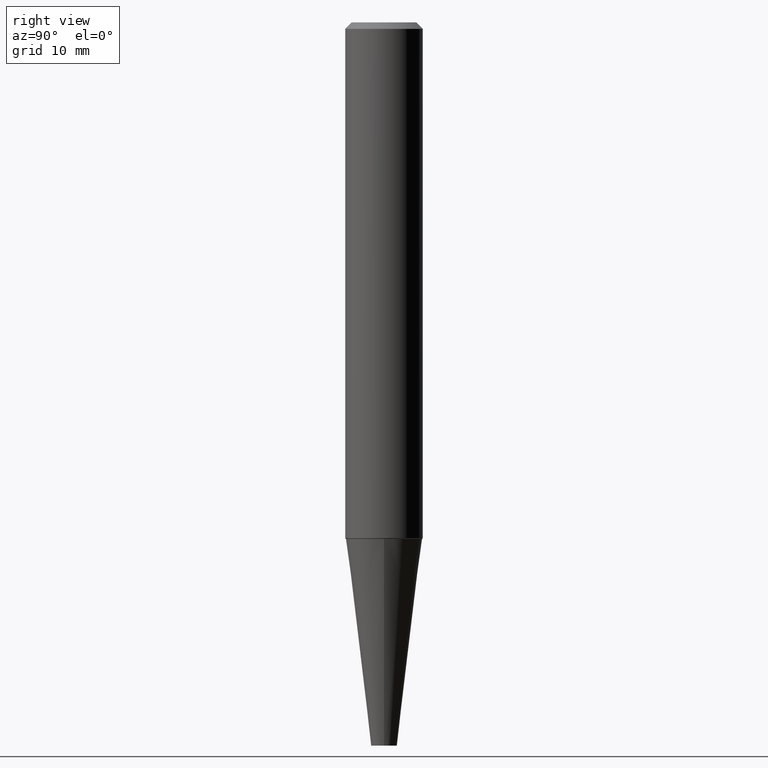
[diagram: clean part render]
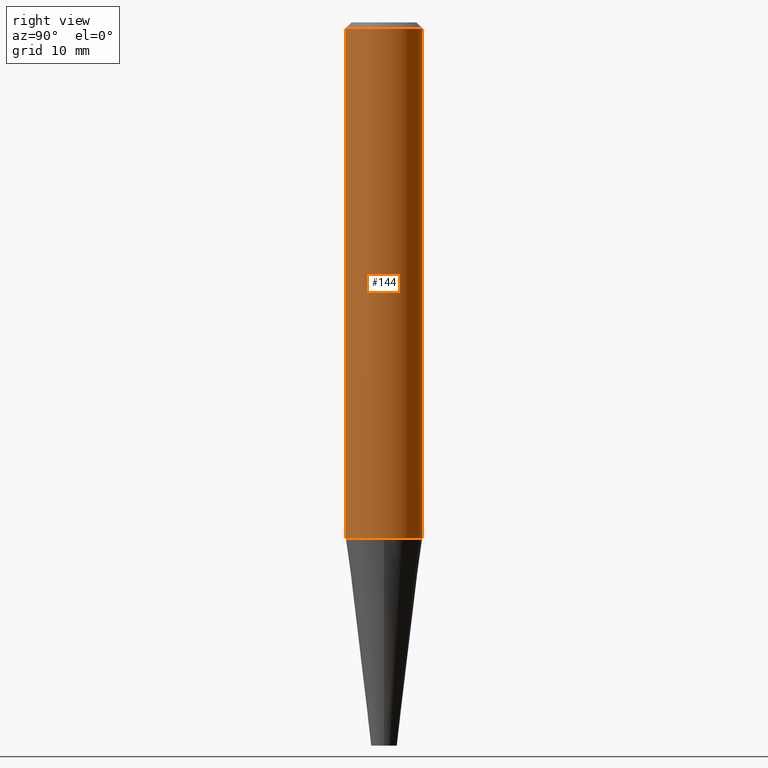
[diagram: same view with one face highlighted and labeled with its STEP entity id]
A machine part, right view. The second image highlights one B-rep face of the part: STEP entity #144.
In plain terms, the highlighted cylindrical surface (partial cylindrical patch) has radius 4.7625 mm, axis along (-0, 0, 1).
Its self-contained STEP definition (entity closure, byte-faithful):
#19 = VERTEX_POINT ( 'NONE', #153 ) ;
#43 = CIRCLE ( 'NONE', #227, 0.1874999999999999445 ) ;
#68 = FACE_OUTER_BOUND ( 'NONE', #399, .T. ) ;
#85 = CARTESIAN_POINT ( 'NONE',  ( -1.309305502066179544E-15, -0.1875000000000006661, 6.320793669469502514E-16 ) ) ;
#94 = DIRECTION ( 'NONE',  ( -6.982962677686266711E-15, -1.000000000000000000, 2.913971193241881555E-15 ) ) ;
#98 = EDGE_CURVE ( 'NONE', #246, #112, #43, .T. ) ;
#106 = EDGE_CURVE ( 'NONE', #246, #19, #214, .T. ) ;
#112 = VERTEX_POINT ( 'NONE', #126 ) ;
#122 = ORIENTED_EDGE ( 'NONE', *, *, #409, .T. ) ;
#124 = DIRECTION ( 'NONE',  ( -2.600759612072551772E-29, 3.269096066208594988E-15, 1.000000000000000000 ) ) ;
#125 = CARTESIAN_POINT ( 'NONE',  ( 1.309305502066175600E-15, 0.1874999999999998890, -0.03125000000000069389 ) ) ;
#126 = CARTESIAN_POINT ( 'NONE',  ( 1.332267629550217234E-15, 0.1874999999999913125, -2.495248975524297474 ) ) ;
#144 = ADVANCED_FACE ( 'NONE', ( #68 ), #239, .T. ) ;
#153 = CARTESIAN_POINT ( 'NONE',  ( -1.286343374582167887E-15, -0.1875000000000010270, -0.03124999999999946571 ) ) ;
#186 = AXIS2_PLACEMENT_3D ( 'NONE', #411, #311, #225 ) ;
#202 = DIRECTION ( 'NONE',  ( -6.982962677686265922E-15, -1.000000000000000000, 3.269096066208594988E-15 ) ) ;
#214 = LINE ( 'NONE', #85, #237 ) ;
#219 = DIRECTION ( 'NONE',  ( -2.600759612072551772E-29, 3.269096066208594988E-15, 1.000000000000000000 ) ) ;
#223 = LINE ( 'NONE', #283, #310 ) ;
#225 = DIRECTION ( 'NONE',  ( -6.982962677686265922E-15, -1.000000000000000000, 3.278217592397107974E-15 ) ) ;
#227 = AXIS2_PLACEMENT_3D ( 'NONE', #334, #124, #94 ) ;
#237 = VECTOR ( 'NONE', #405, 39.37007874015748143 ) ;
#239 = CYLINDRICAL_SURFACE ( 'NONE', #262, 0.1875000000000001943 ) ;
#243 = ORIENTED_EDGE ( 'NONE', *, *, #98, .T. ) ;
#246 = VERTEX_POINT ( 'NONE', #337 ) ;
#262 = AXIS2_PLACEMENT_3D ( 'NONE', #357, #269, #202 ) ;
#269 = DIRECTION ( 'NONE',  ( -2.600759612072551772E-29, 3.269096066208594988E-15, 1.000000000000000000 ) ) ;
#282 = EDGE_CURVE ( 'NONE', #19, #361, #415, .T. ) ;
#283 = CARTESIAN_POINT ( 'NONE',  ( 1.332267629550185482E-15, 0.1874999999999996947, -5.938316578812741509E-16 ) ) ;
#310 = VECTOR ( 'NONE', #219, 39.37007874015748143 ) ;
#311 = DIRECTION ( 'NONE',  ( -2.600759612072551772E-29, 3.269096066208594988E-15, 1.000000000000000000 ) ) ;
#333 = ORIENTED_EDGE ( 'NONE', *, *, #282, .F. ) ;
#334 = CARTESIAN_POINT ( 'NONE',  ( 6.149744514762260827E-29, -8.643819033968951977E-15, -2.495248975524296586 ) ) ;
#337 = CARTESIAN_POINT ( 'NONE',  ( -1.309305502066113083E-15, -0.1875000000000085765, -2.495248975524296142 ) ) ;
#357 = CARTESIAN_POINT ( 'NONE',  ( -3.397982428467408395E-30, -4.866104238714468673E-16, 1.912385453283800096E-17 ) ) ;
#361 = VERTEX_POINT ( 'NONE', #125 ) ;
#367 = ORIENTED_EDGE ( 'NONE', *, *, #106, .F. ) ;
#399 = EDGE_LOOP ( 'NONE', ( #243, #122, #333, #367 ) ) ;
#405 = DIRECTION ( 'NONE',  ( -2.600759612072551772E-29, 3.269096066208594988E-15, 1.000000000000000000 ) ) ;
#409 = EDGE_CURVE ( 'NONE', #112, #361, #223, .T. ) ;
#411 = CARTESIAN_POINT ( 'NONE',  ( -2.585245049694732813E-30, -5.887696759404657318E-16, -0.03125000000000008327 ) ) ;
#415 = CIRCLE ( 'NONE', #186, 0.1875000000000004718 ) ;